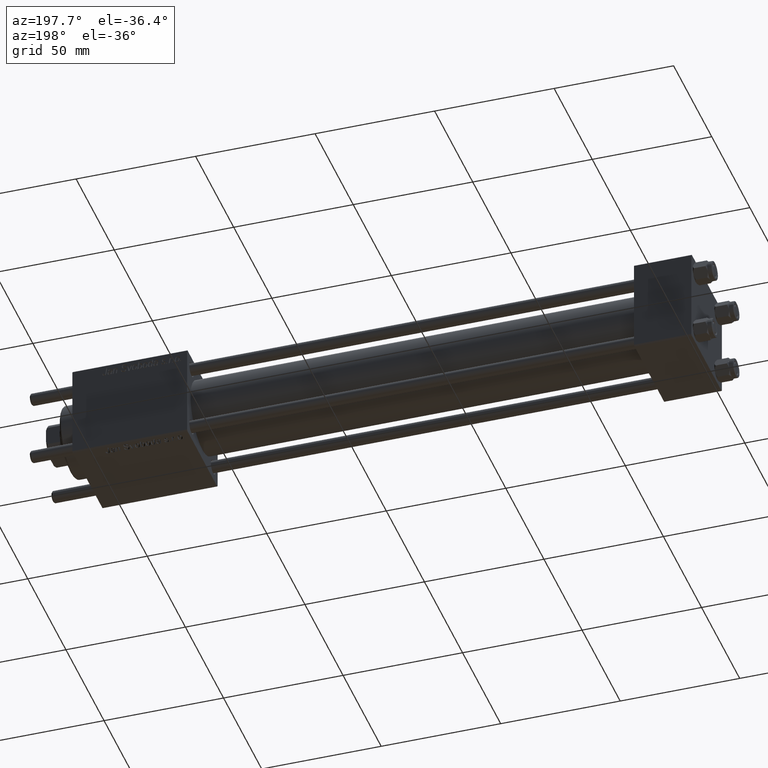
[diagram: clean part render]
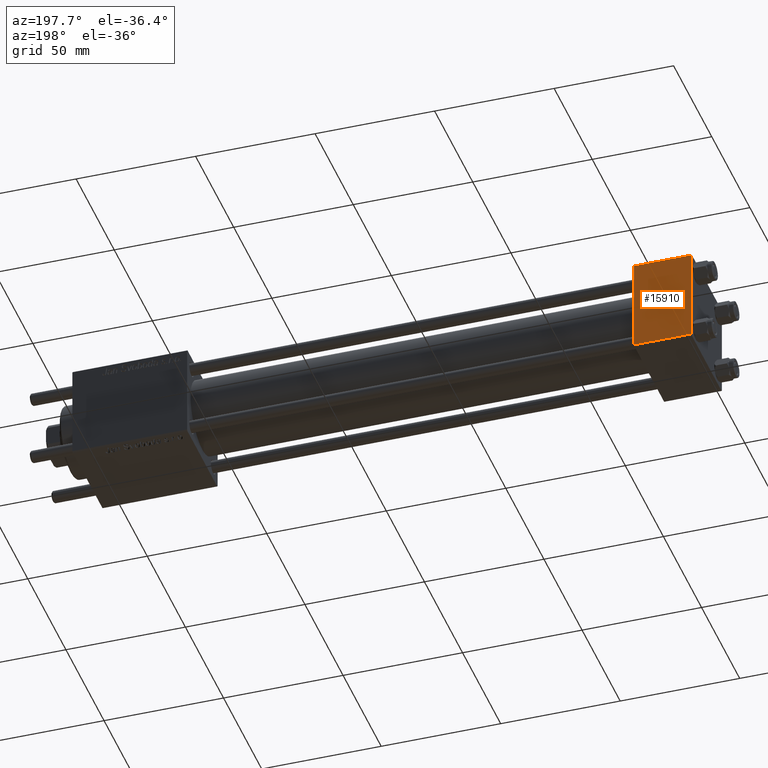
[diagram: same view with one face highlighted and labeled with its STEP entity id]
A machine part, auxiliary view. The second image highlights one B-rep face of the part: STEP entity #15910.
In plain terms, the highlighted planar face has unit normal (0, 1, 0).
Its self-contained STEP definition (entity closure, byte-faithful):
#948 = EDGE_CURVE ( 'NONE', #36945, #46046, #41185, .T. ) ;
#1632 = CARTESIAN_POINT ( 'NONE',  ( 0.000000000000000000, 20.00000000000000000, 20.00000000000000000 ) ) ;
#1910 = DIRECTION ( 'NONE',  ( 0.000000000000000000, 0.000000000000000000, -1.000000000000000000 ) ) ;
#3507 = VECTOR ( 'NONE', #54090, 1000.000000000000000 ) ;
#3706 = FACE_OUTER_BOUND ( 'NONE', #56388, .T. ) ;
#3997 = PLANE ( 'NONE',  #40373 ) ;
#4762 = ORIENTED_EDGE ( 'NONE', *, *, #948, .T. ) ;
#5391 = CARTESIAN_POINT ( 'NONE',  ( 24.00000000000000000, 20.00000000000000000, 19.49999999999999289 ) ) ;
#6700 = CARTESIAN_POINT ( 'NONE',  ( 0.000000000000000000, 20.00000000000000000, -19.50000000000002132 ) ) ;
#8688 = LINE ( 'NONE', #13540, #24344 ) ;
#8796 = CARTESIAN_POINT ( 'NONE',  ( 24.00000000000000000, 20.00000000000000000, 19.49999999999999289 ) ) ;
#9346 = DIRECTION ( 'NONE',  ( 1.000000000000000000, 0.000000000000000000, 0.000000000000000000 ) ) ;
#13540 = CARTESIAN_POINT ( 'NONE',  ( 24.00000000000000000, 20.00000000000000000, 20.00000000000000000 ) ) ;
#13602 = ORIENTED_EDGE ( 'NONE', *, *, #29925, .T. ) ;
#15910 = ADVANCED_FACE ( 'NONE', ( #3706 ), #3997, .T. ) ;
#16044 = VECTOR ( 'NONE', #1910, 1000.000000000000000 ) ;
#17651 = ORIENTED_EDGE ( 'NONE', *, *, #28937, .F. ) ;
#18620 = VECTOR ( 'NONE', #9346, 1000.000000000000000 ) ;
#21173 = CARTESIAN_POINT ( 'NONE',  ( 24.00000000000000000, 20.00000000000000000, 20.00000000000000000 ) ) ;
#24344 = VECTOR ( 'NONE', #47647, 1000.000000000000000 ) ;
#28143 = ORIENTED_EDGE ( 'NONE', *, *, #38503, .T. ) ;
#28937 = EDGE_CURVE ( 'NONE', #36735, #46046, #40883, .T. ) ;
#29925 = EDGE_CURVE ( 'NONE', #53503, #36945, #8688, .T. ) ;
#30350 = DIRECTION ( 'NONE',  ( 0.000000000000000000, -0.000000000000000000, 1.000000000000000000 ) ) ;
#30556 = LINE ( 'NONE', #8796, #18620 ) ;
#36735 = VERTEX_POINT ( 'NONE', #46184 ) ;
#36945 = VERTEX_POINT ( 'NONE', #47311 ) ;
#38503 = EDGE_CURVE ( 'NONE', #36735, #53503, #30556, .T. ) ;
#40373 = AXIS2_PLACEMENT_3D ( 'NONE', #21173, #51855, #30350 ) ;
#40883 = LINE ( 'NONE', #1632, #16044 ) ;
#41185 = LINE ( 'NONE', #44928, #3507 ) ;
#44928 = CARTESIAN_POINT ( 'NONE',  ( 24.00000000000000000, 20.00000000000000000, -19.50000000000002132 ) ) ;
#46046 = VERTEX_POINT ( 'NONE', #6700 ) ;
#46184 = CARTESIAN_POINT ( 'NONE',  ( 0.000000000000000000, 20.00000000000000000, 19.49999999999999289 ) ) ;
#47311 = CARTESIAN_POINT ( 'NONE',  ( 24.00000000000000000, 20.00000000000000000, -19.50000000000002132 ) ) ;
#47647 = DIRECTION ( 'NONE',  ( 0.000000000000000000, 0.000000000000000000, -1.000000000000000000 ) ) ;
#51855 = DIRECTION ( 'NONE',  ( -0.000000000000000000, 1.000000000000000000, 0.000000000000000000 ) ) ;
#53503 = VERTEX_POINT ( 'NONE', #5391 ) ;
#54090 = DIRECTION ( 'NONE',  ( -1.000000000000000000, 0.000000000000000000, 0.000000000000000000 ) ) ;
#56388 = EDGE_LOOP ( 'NONE', ( #13602, #4762, #17651, #28143 ) ) ;